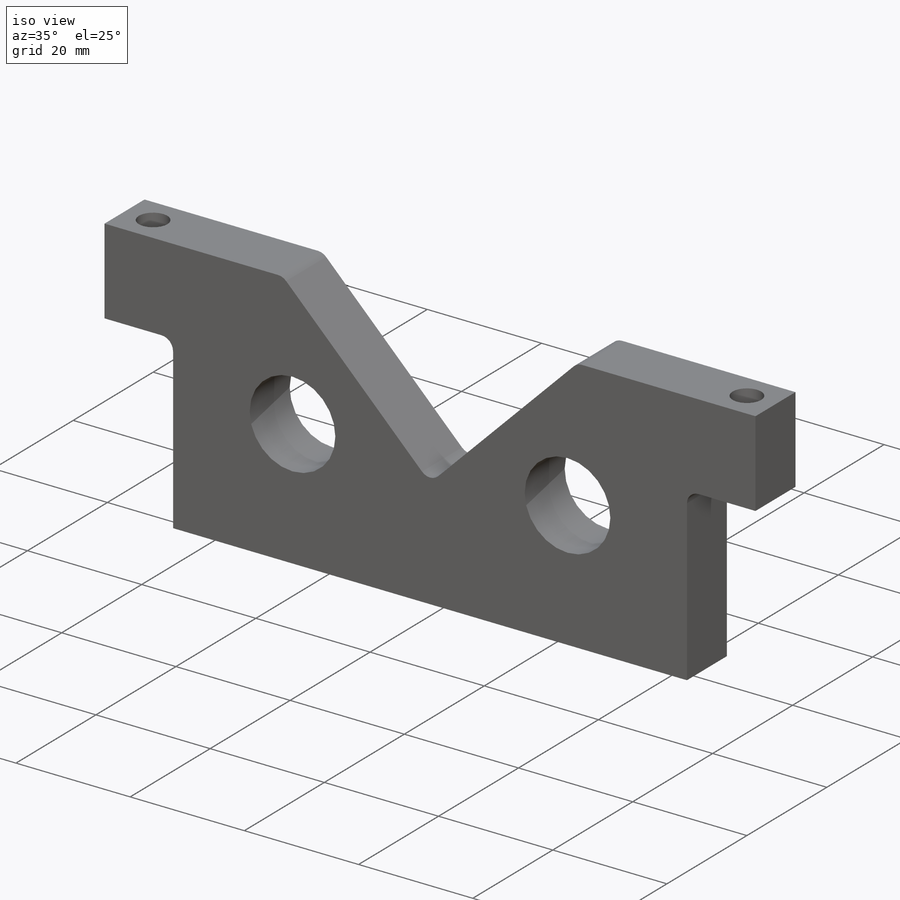
[diagram: iso view]
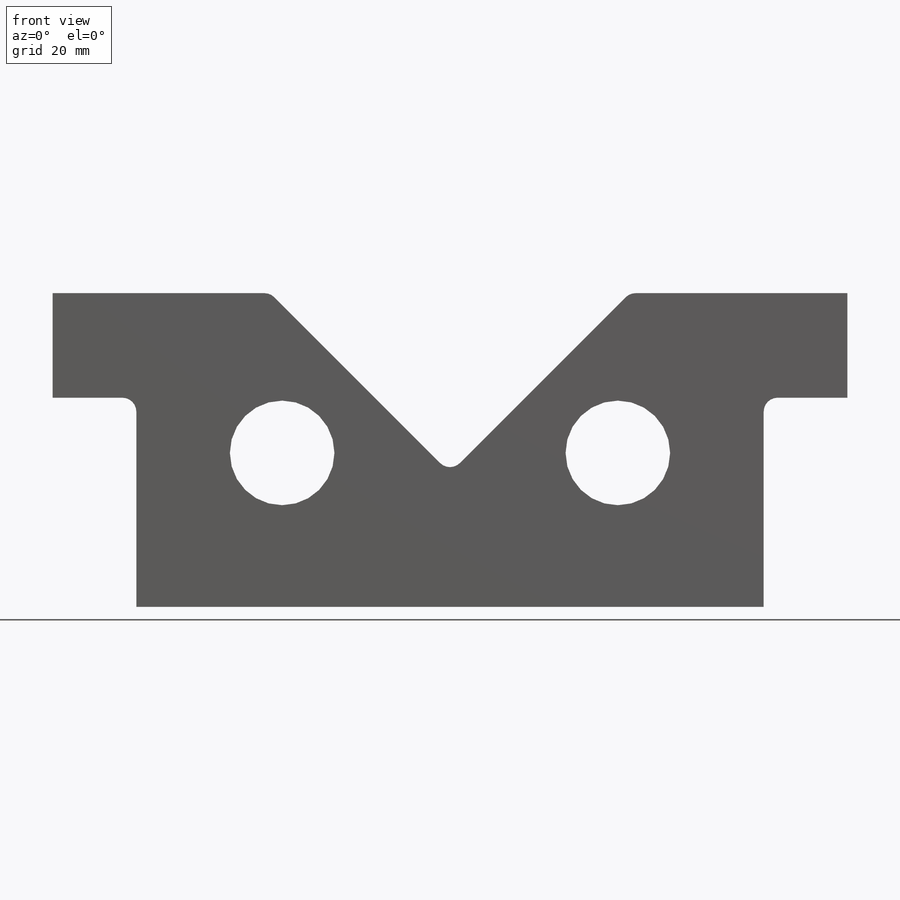
[diagram: front view]
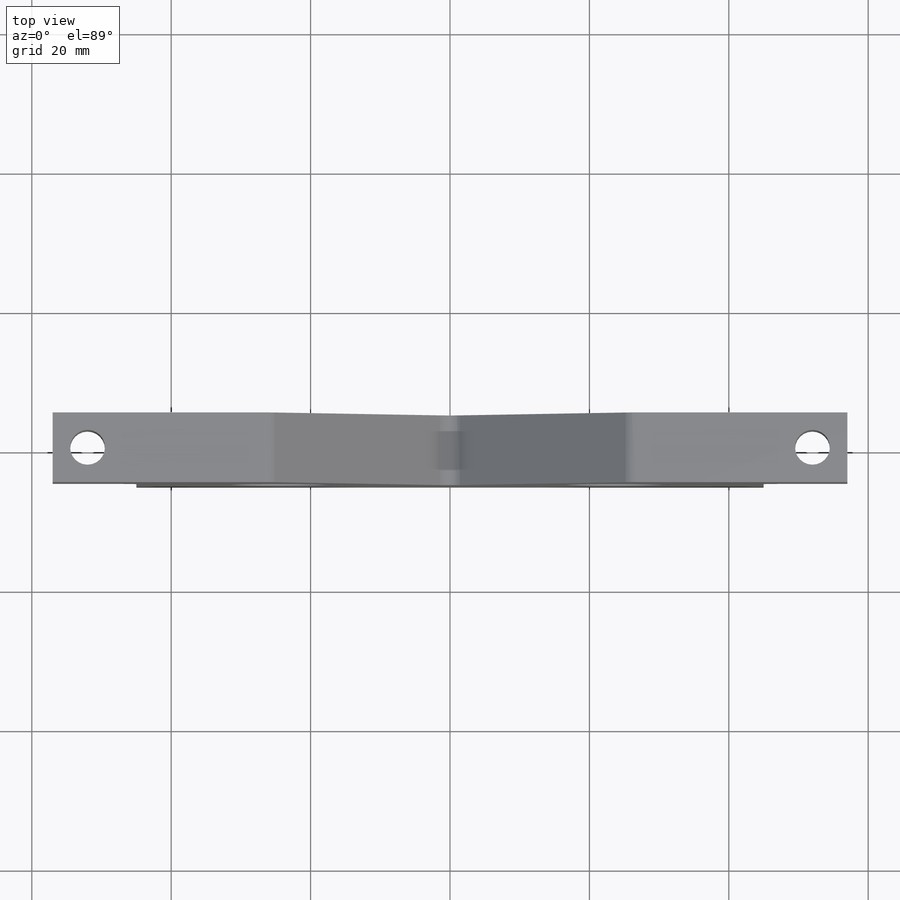
[diagram: top view]
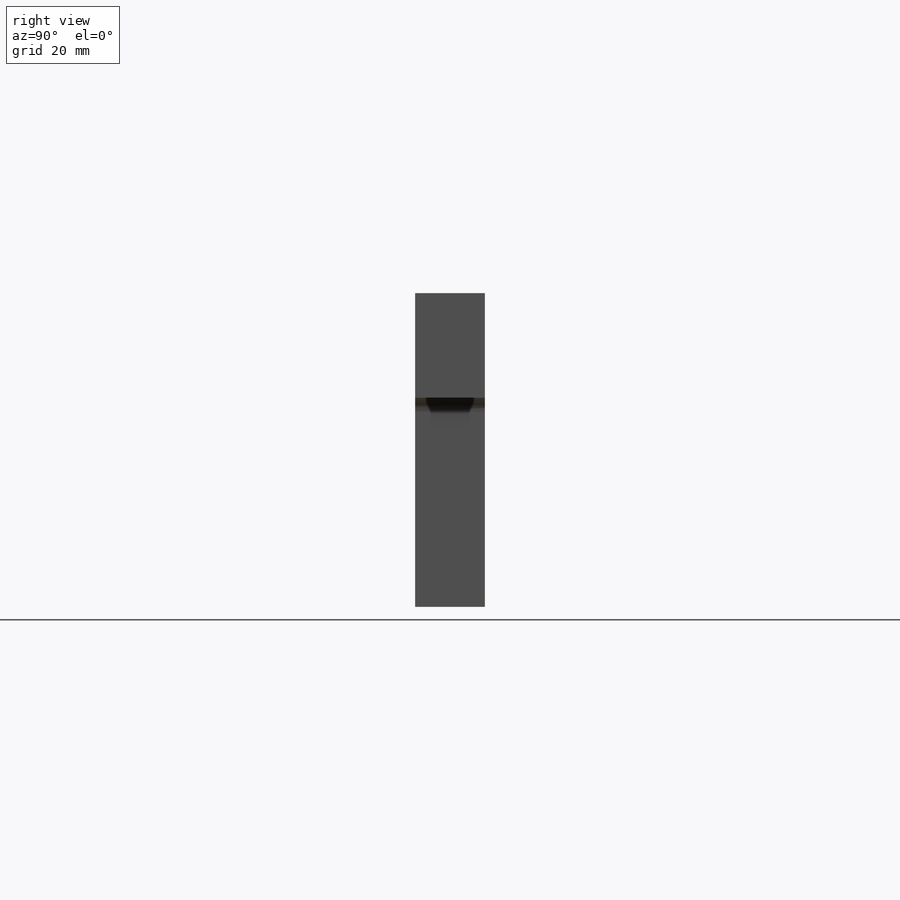
[diagram: right view]
SOLIDWORKS PART (.sldprt)
format: sldprt  version: not decoded by parser v0  size: 314,880 bytes
history: native  units: mm
features: sketch x8, thread x4, plane x3, hole x2, material x1, extrude x1, fillet x1 (+10 scaffold rows collapsed)
feature tree (30):
  scaffold x10  (default folders/planes/origin — collapsed)
  material  "材質 <未指定>"
  plane  "前基準面"
  plane  "上基準面"
  plane  "右基準面"
  sketch  "草圖1"  dims[c1.D6=90.0mm c1.D9=15.0mm c1.D11=180.0mm c1.D8=90.0mm c1.D12=5.0mm c2.D6=90.0mm c2.D7=15.0mm c2.D9=5.0mm c2.D13=2.0mm c2.D14=2.0mm c2.D2=2.0mm c2.D1=90.0mm c3.D2=90.0mm c3.D3=5.0mm c3.D4=40.0mm c3.D5=40.0mm c3.D7=30.0mm c3.D8=10.0mm c3.D10=15.0mm c4.D7=10.0mm c4.D8=30.0mm c5.D7=~23.296748mm c5.D8=10.0mm c5.D11=10.0mm c5.D13=10.0mm c5.D1=90.0mm c5.D2=90.0mm c5.D3=5.0mm c5.D4=40.0mm c5.D5=40.0mm c6.D8=15.0mm c6.D10=15.0mm c6.D11=12.0mm c6.D12=~12.609079mm c7.D12=~3.702279deg c8.D12=~0.815896mm c9.D12=~183.702279deg c10.D12=5.0mm c10.D15=90.0mm c10.D16=90.0mm c10.D17=30.0mm]
  extrude  "填料-伸長1"  Depth=10mm
  sketch  "草圖2"  dims[D1=5.0mm]
  fillet  "圓角1"  Radius=2mm
  sketch  "草圖6"  dims[D1=10.0mm]
  hole  "M5 螺紋孔1"  [1 undecoded]
  sketch  "草圖10"
  sketch  "草圖11"  dims[hole-wizard template sketch: 46 standard entries collapsed; hole parameters kept: c15.螺孔鑽直徑=4.2mm c15.螺孔鑽深度=15.0mm c15.D3=~14.816244mm c15.導頭角度=118.0deg]
  thread  "鑽孔螺紋1"  Diameter=15mm  [1 undecoded]
  thread  "鑽孔螺紋2"  Diameter=15mm  [1 undecoded]
  sketch  "草圖12"
  hole  "M6 螺紋孔1"  [1 undecoded]
  sketch  "草圖14"  dims[D1=5.0mm D2=5.0mm]
  sketch  "草圖13"  dims[hole-wizard template sketch: 59 standard entries collapsed; hole parameters kept: c18.貫穿螺孔鑽直徑=5.0mm c18.貫穿螺孔鑽深度=45.0mm]
  thread  "鑽孔螺紋3"  Diameter=6mm  [1 undecoded]
  thread  "鑽孔螺紋4"  Diameter=6mm  [1 undecoded]
decode coverage: 12 of 16 modeling features carry decoded parameters
note: ~ marks probable driven/reference dimensions
note: 6 parameter values undecoded
note: suppression state not decoded; provenance and decode notes live in map.json
